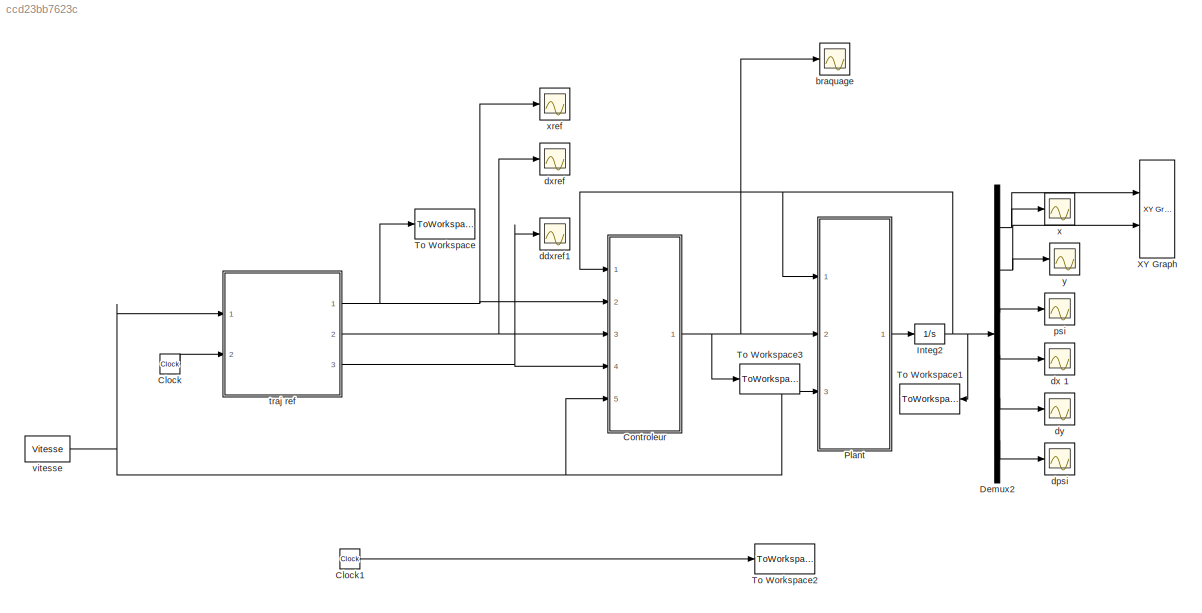
MODEL slx_ccd23bb7623c
KIND model
CONFIG AbsTol = auto
CONFIG EnableMultiTasking = off
CONFIG FixedStep = 0.005
CONFIG MaxStep = auto
CONFIG MinStep = auto
CONFIG RelTol = 1e-2
CONFIG SampleTimeConstraint = Unconstrained
CONFIG Solver = ode5
CONFIG SolverName = ode5
CONFIG StartTime = 0.0
CONFIG StopTime = 40
BLOCK [Clock] Clock
BLOCK [Clock] Clock1
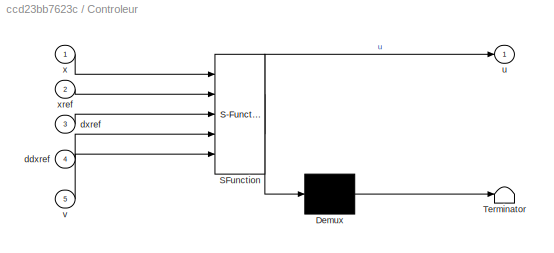
BLOCK [SubSystem] Controleur
  ErrorFcn = Stateflow.Translate.translate
  PermitHierarchicalResolution = ExplicitOnly
  Ports = [5, 1]
  RequestExecContextInheritance = off
  SFBlockType = MATLAB Function
  TreatAsAtomicUnit = on
  Variant = off
BLOCK [Demux] Controleur/ Demux 
  Outputs = 1
  Ports = [1, 1]
BLOCK [S-Function] Controleur/ SFunction 
  EnableBusSupport = on
  FunctionName = sf_sfun
  PortCounts = [5 2]
  Ports = [5, 2]
  SFcnIsStateOwnerBlock = off
  SFunctionDeploymentMode = off
  Tag = Stateflow S-Function NCGPC_circulaire 1
BLOCK [Terminator] Controleur/ Terminator 
BLOCK [Inport] Controleur/ddxref
  IconDisplay = Port number
  Port = 4
BLOCK [Inport] Controleur/dxref
  IconDisplay = Port number
  Port = 3
BLOCK [Outport] Controleur/u
  IconDisplay = Port number
BLOCK [Inport] Controleur/v
  IconDisplay = Port number
  Port = 5
BLOCK [Inport] Controleur/x
  IconDisplay = Port number
BLOCK [Inport] Controleur/xref
  IconDisplay = Port number
  Port = 2
BLOCK [Demux] Demux2
  DisplayOption = bar
  Outputs = 6
  Ports = [1, 6]
BLOCK [Integrator] Integ2
  InitialCondition = X0_circulaire
  Ports = [1, 1]
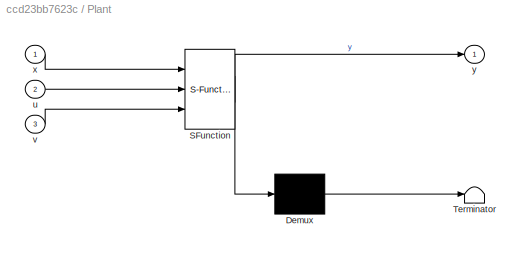
BLOCK [SubSystem] Plant
  ErrorFcn = Stateflow.Translate.translate
  PermitHierarchicalResolution = ExplicitOnly
  Ports = [3, 1]
  RequestExecContextInheritance = off
  SFBlockType = MATLAB Function
  TreatAsAtomicUnit = on
  Variant = off
BLOCK [Demux] Plant/ Demux 
  Outputs = 1
  Ports = [1, 1]
BLOCK [S-Function] Plant/ SFunction 
  EnableBusSupport = on
  FunctionName = sf_sfun
  PortCounts = [3 2]
  Ports = [3, 2]
  SFcnIsStateOwnerBlock = off
  SFunctionDeploymentMode = off
  Tag = Stateflow S-Function NCGPC_circulaire 2
BLOCK [Terminator] Plant/ Terminator 
BLOCK [Inport] Plant/u
  IconDisplay = Port number
  Port = 2
BLOCK [Inport] Plant/v
  IconDisplay = Port number
  Port = 3
BLOCK [Inport] Plant/x
  IconDisplay = Port number
BLOCK [Outport] Plant/y
  IconDisplay = Port number
BLOCK [ToWorkspace] To Workspace
  FixptAsFi = on
  MaxDataPoints = inf
  Ports = [1]
  SampleTime = -1
  Save2DSignal = 3-D array (concatenate along third dimension)
  VariableName = posref
BLOCK [ToWorkspace] To Workspace1
  FixptAsFi = on
  MaxDataPoints = inf
  Ports = [1]
  SampleTime = -1
  Save2DSignal = 3-D array (concatenate along third dimension)
  VariableName = pos_cal
BLOCK [ToWorkspace] To Workspace2
  FixptAsFi = on
  MaxDataPoints = inf
  Ports = [1]
  SampleTime = -1
  Save2DSignal = 3-D array (concatenate along third dimension)
  VariableName = temps
BLOCK [ToWorkspace] To Workspace3
  FixptAsFi = on
  MaxDataPoints = inf
  Ports = [1]
  SampleTime = -1
  Save2DSignal = 3-D array (concatenate along third dimension)
  VariableName = beta
BLOCK [Reference] XY Graph  REF=simulink/Sinks/XY Graph
  Ports = [2]
  SourceBlock = simulink/Sinks/XY Graph
  SourceType = XY scope.
BLOCK [Scope] braquage
  NumInputPorts = 1
  Ports = [1]
  ScopeSpecificationString = Simulink.scopes.TimeScopeBlockCfg('CurrentConfiguration', extmgr.ConfigurationSet(extmgr.Configuration('Core','General UI',true),extmgr.Configuration('Core','Source UI',true),extmgr.Configuration('Sources','WiredSimulink',true,'DataLoggingVariableName','ScopeData1'),extmgr.Configuration('Visuals','Time Domain',true,'SerializedDisplays',{struct('MinYLimReal','-1.02348','MaxYLimReal','-0.92772','YLa...<+1468ch>
BLOCK [Scope] ddxref1
  NumInputPorts = 1
  Ports = [1]
  ScopeSpecificationString = Simulink.scopes.TimeScopeBlockCfg('CurrentConfiguration', extmgr.ConfigurationSet(extmgr.Configuration('Core','General UI',true),extmgr.Configuration('Core','Source UI',true),extmgr.Configuration('Sources','WiredSimulink',true,'DataLoggingVariableName','ScopeData3'),extmgr.Configuration('Visuals','Time Domain',true,'SerializedDisplays',{struct('MinYLimReal','-0.5','MaxYLimReal','4.5','YLabelReal',...<+1446ch>
BLOCK [Scope] dpsi
  NumInputPorts = 1
  Ports = [1]
  ScopeSpecificationString = Simulink.scopes.TimeScopeBlockCfg('CurrentConfiguration', extmgr.ConfigurationSet(extmgr.Configuration('Core','General UI',true),extmgr.Configuration('Core','Source UI',true),extmgr.Configuration('Sources','WiredSimulink',true,'DataLoggingVariableName','ScopeData5'),extmgr.Configuration('Visuals','Time Domain',true,'SerializedDisplays',{struct('MinYLimReal','-88437061995645779000000.00000','MaxYLi...<+1600ch>
BLOCK [Scope] dx 1
  NumInputPorts = 1
  Ports = [1]
  ScopeSpecificationString = Simulink.scopes.TimeScopeBlockCfg('CurrentConfiguration', extmgr.ConfigurationSet(extmgr.Configuration('Core','General UI',true),extmgr.Configuration('Core','Source UI',true),extmgr.Configuration('Sources','WiredSimulink',true,'DataLoggingVariableName','ScopeData2'),extmgr.Configuration('Visuals','Time Domain',true,'SerializedDisplays',{struct('MinYLimReal','0.02517','MaxYLimReal','4.45903','YLabe...<+1407ch>
BLOCK [Scope] dxref
  NumInputPorts = 1
  Ports = [1]
  ScopeSpecificationString = Simulink.scopes.TimeScopeBlockCfg('CurrentConfiguration', extmgr.ConfigurationSet(extmgr.Configuration('Core','General UI',true),extmgr.Configuration('Core','Source UI',true),extmgr.Configuration('Sources','WiredSimulink',true,'DataLoggingVariableName','ScopeData3'),extmgr.Configuration('Visuals','Time Domain',true,'SerializedDisplays',{struct('MinYLimReal','-1.00000','MaxYLimReal','1.00000','YLab...<+1467ch>
BLOCK [Scope] dy
  NumInputPorts = 1
  Ports = [1]
  ScopeSpecificationString = Simulink.scopes.TimeScopeBlockCfg('CurrentConfiguration', extmgr.ConfigurationSet(extmgr.Configuration('Core','General UI',true),extmgr.Configuration('Core','Source UI',true),extmgr.Configuration('Sources','WiredSimulink',true,'DataLoggingVariableName','ScopeData4'),extmgr.Configuration('Visuals','Time Domain',true,'SerializedDisplays',{struct('MinYLimReal','-13747789116403234000000000000000000000...<+3864ch>
BLOCK [Scope] psi
  NumInputPorts = 1
  Ports = [1]
  ScopeSpecificationString = Simulink.scopes.TimeScopeBlockCfg('CurrentConfiguration', extmgr.ConfigurationSet(extmgr.Configuration('Core','General UI',true),extmgr.Configuration('Core','Source UI',true),extmgr.Configuration('Sources','WiredSimulink',true,'DataLoggingVariableName','ScopeData2'),extmgr.Configuration('Visuals','Time Domain',true,'SerializedDisplays',{struct('MinYLimReal','-0.10331','MaxYLimReal','0.92977','YLab...<+1422ch>
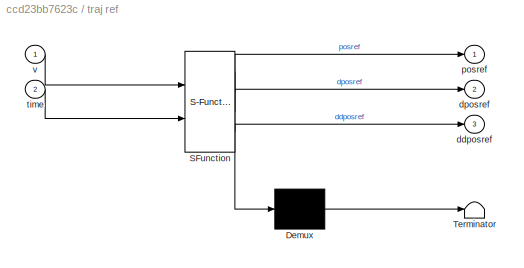
BLOCK [SubSystem] traj ref
  ErrorFcn = Stateflow.Translate.translate
  PermitHierarchicalResolution = ExplicitOnly
  Ports = [2, 3]
  RequestExecContextInheritance = off
  SFBlockType = MATLAB Function
  TreatAsAtomicUnit = on
  Variant = off
BLOCK [Demux] traj ref/ Demux 
  Outputs = 1
  Ports = [1, 1]
BLOCK [S-Function] traj ref/ SFunction 
  EnableBusSupport = on
  FunctionName = sf_sfun
  PortCounts = [2 4]
  Ports = [2, 4]
  SFcnIsStateOwnerBlock = off
  SFunctionDeploymentMode = off
  Tag = Stateflow S-Function NCGPC_circulaire 3
BLOCK [Terminator] traj ref/ Terminator 
BLOCK [Outport] traj ref/ddposref
  IconDisplay = Port number
  Port = 3
BLOCK [Outport] traj ref/dposref
  IconDisplay = Port number
  Port = 2
BLOCK [Outport] traj ref/posref
  IconDisplay = Port number
BLOCK [Inport] traj ref/time
  IconDisplay = Port number
  Port = 2
BLOCK [Inport] traj ref/v
  IconDisplay = Port number
BLOCK [Constant] vitesse
  Value = Vitesse
BLOCK [Scope] x 
  NumInputPorts = 1
  Ports = [1]
  ScopeSpecificationString = Simulink.scopes.TimeScopeBlockCfg('CurrentConfiguration', extmgr.ConfigurationSet(extmgr.Configuration('Core','General UI',true),extmgr.Configuration('Core','Source UI',true),extmgr.Configuration('Sources','WiredSimulink',true),extmgr.Configuration('Visuals','Time Domain',true,'SerializedDisplays',{struct('MinYLimReal','-16.01746','MaxYLimReal','144.15713','YLabelReal','','MinYLimMag','0.00000','M...<+1386ch>
BLOCK [Scope] xref
  NumInputPorts = 1
  Ports = [1]
  ScopeSpecificationString = Simulink.scopes.TimeScopeBlockCfg('CurrentConfiguration', extmgr.ConfigurationSet(extmgr.Configuration('Core','General UI',true),extmgr.Configuration('Core','Source UI',true),extmgr.Configuration('Sources','WiredSimulink',true,'DataLoggingVariableName','ScopeData2'),extmgr.Configuration('Visuals','Time Domain',true,'SerializedDisplays',{struct('MinYLimReal','-500.78512','MaxYLimReal','4500.08721',...<+1481ch>
BLOCK [Scope] y 
  NumInputPorts = 1
  Ports = [1]
  ScopeSpecificationString = Simulink.scopes.TimeScopeBlockCfg('CurrentConfiguration', extmgr.ConfigurationSet(extmgr.Configuration('Core','General UI',true),extmgr.Configuration('Core','Source UI',true),extmgr.Configuration('Sources','WiredSimulink',true,'DataLoggingVariableName','ScopeData1'),extmgr.Configuration('Visuals','Time Domain',true,'SerializedDisplays',{struct('MinYLimReal','-16.01597','MaxYLimReal','144.14369','Y...<+1432ch>
LINE Clock1:1 -> To Workspace2:1
LINE Clock:1 -> traj ref:2
NET Controleur:1 -> Plant:2, To Workspace3:1, braquage:1
NET Demux2:1 -> XY Graph:1, x :1
NET Demux2:2 -> XY Graph:2, y :1
LINE Demux2:3 -> psi:1
LINE Demux2:4 -> dx 1:1
LINE Demux2:5 -> dy:1
LINE Demux2:6 -> dpsi:1
NET Integ2:1 -> Controleur:1, Demux2:1, Plant:1, To Workspace1:1
LINE Plant:1 -> Integ2:1
NET traj ref:1 -> Controleur:2, To Workspace:1, xref:1
NET traj ref:2 -> Controleur:3, dxref:1
NET traj ref:3 -> Controleur:4, ddxref1:1
NET vitesse:1 -> Controleur:5, Plant:3, traj ref:1
note: NET lines group one-source signal fan-out (src -> all destinations, sorted); 1:1 wires keep LINE
CHART Controleur states=1 transitions=1
  STATE_LABEL 'eML_blk_kernel()'
  STATE_LABEL 'SCRIPT:\nfunction u = MPC(x,xref,dxref,ddxref,v)\n\n% Cornering stifnesse \nCf=15000;\nCr=10000;\n\n%position of cdg\na=1.2;\nb=1;\n\n%mass and inertia moment \nmasse=700;\nmoment=400*(1.2^2+0.7^2)/12;\n\n% Speed\nvit=v;\n\n% Prediction Time\nTs=5 ;\n\n%%\npsi=x(3);\nVpsi=x(6);\nVx=x(4)*cos(psi)+x(5)*sin(psi);\nVy=-x(4)*sin(psi)+x(5)*cos(psi);\n\n\n%% matrice A et B\na11=-2*(Cf+Cr)/(masse*vit);\na12=-2*(a*Cf-b*Cr)/(masse*vit)-...<+830ch>'
CHART Plant states=1 transitions=1
  STATE_LABEL 'eML_blk_kernel()'
  STATE_LABEL "SCRIPT:\nfunction y = plant(x,u,v)\n\n%global param\n\n%rigidité de dérive\nCf=15000;\nCr=10000;\n\n%position du cdg\na=1.2;\nb=1;\n\n%masse et momet d'inertie\nmasse=700;\nmoment=400*(1.2^2+0.7^2)/12;\n\n%vitesse\nvit=v;\n\n%%\nbeta_f=u(1);\nbeta_r=u(2);\n\nXpos=x(1);\nYpos=x(2);\npsi=x(3);\n\ndXpos=x(4);\ndYpos=x(5);\ndpsi=x(6);\n\n%% matrice A et B\na11=-2*(Cf+Cr)/(masse*vit);\na12=-2*(a*Cf-b*Cr)/(masse*vit)-vit;\na21=-2*(a*Cf-b...<+496ch>"
CHART traj ref states=1 transitions=1
  STATE_LABEL 'eML_blk_kernel()'
  STATE_LABEL 'SCRIPT:\nfunction [posref,dposref,ddposref] = ref(v,time)\n\n% %droite\n% Xposref=v*time;\n% Yposref=0;\n\n%cercle\nR=15;\nT=2*pi*R/v;\nomega=v/R;\n\nteta=omega*time;\n\npsiref=pi/2+teta;\nXposref=R*sin(psiref);\nYposref=-R*cos(psiref);\n\ndpsiref=omega;\ndXposref=v*cos(psiref);\ndYposref=v*sin(psiref);\n\nddpsiref=0;\nddXposref=-v^2/R*sin(psiref);\nddYposref=v^2/R*cos(psiref);\n\nposref=[Xposref Yposref psiref]; \ndposref=...<+70ch>'
